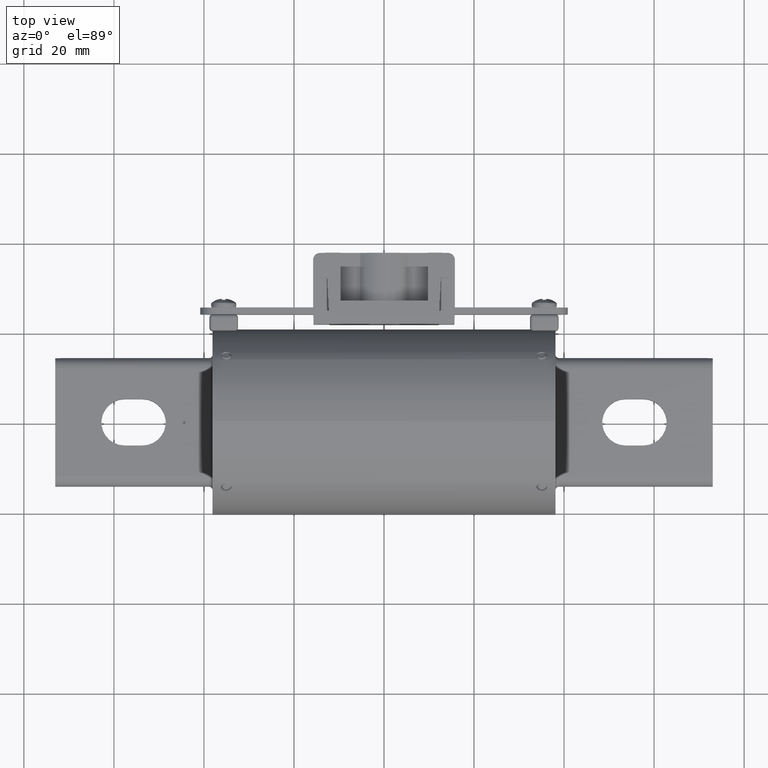
[diagram: clean part render]
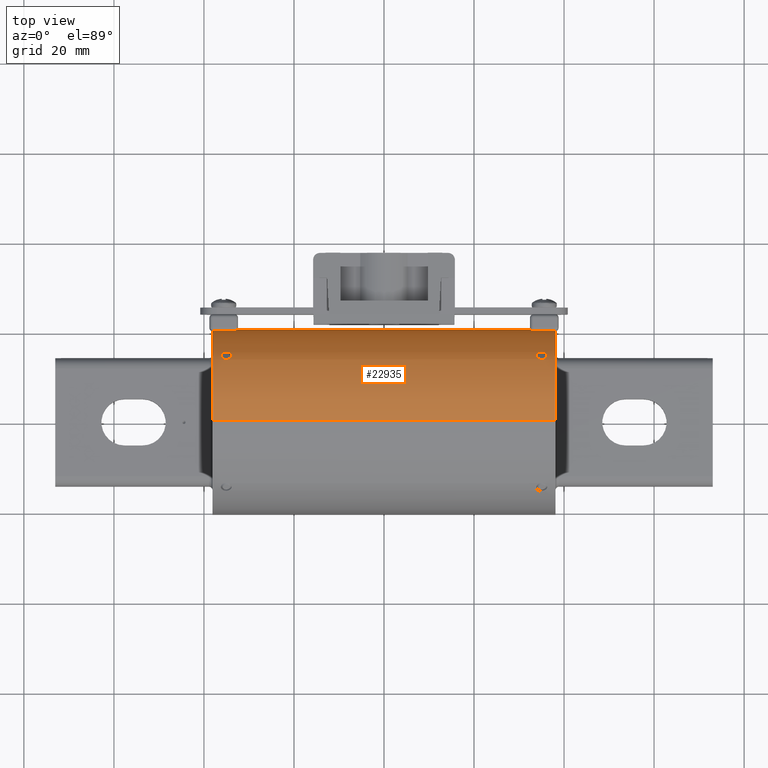
[diagram: same view with one face highlighted and labeled with its STEP entity id]
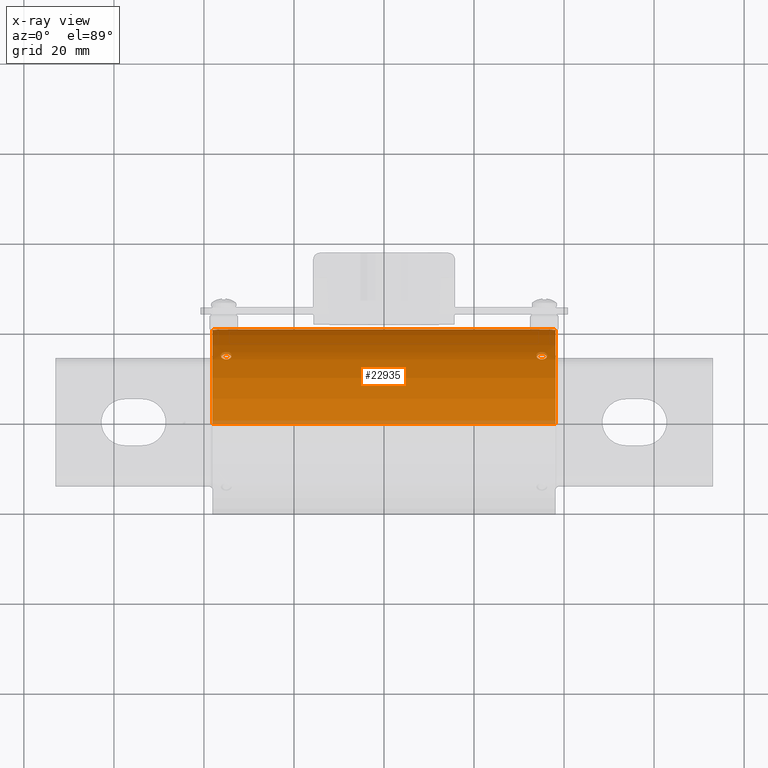
[diagram: x-ray of the same camera — body ghosted, the highlighted face saturated]
A machine part, top view. The second image highlights one B-rep face of the part: STEP entity #22935.
The next image is the same camera in x-ray: the body ghosted, the highlighted face saturated — about 4% of this face is hidden behind the body in this view.
In plain terms, the highlighted cylindrical surface (partial cylindrical patch) has radius 20.6375 mm, axis along (-1, -0, -0).
Its self-contained STEP definition (entity closure, byte-faithful):
#1241 = DIRECTION ( 'NONE',  ( 0.0000000000000000000, 0.0000000000000000000, -1.000000000000000000 ) ) ;
#1450 = CARTESIAN_POINT ( 'NONE',  ( -1.356433065960337900, 0.5448201763631578300, -0.6027708453971180000 ) ) ;
#1861 = CARTESIAN_POINT ( 'NONE',  ( -1.373805751890551500, 0.6067129692111661300, -0.5404217084749377600 ) ) ;
#1900 = CARTESIAN_POINT ( 'NONE',  ( 1.351252371457680700, 0.8124998518751140900, 0.006640135191324507600 ) ) ;
#1938 = CARTESIAN_POINT ( 'NONE',  ( 1.342471897315889800, 0.5945098391806436000, 0.5538352580951657600 ) ) ;
#2285 = CARTESIAN_POINT ( 'NONE',  ( 1.401999999999977500, 0.8109134895289188400, -0.05075000000031478600 ) ) ;
#3332 = VERTEX_POINT ( 'NONE', #50937 ) ;
#3463 = ORIENTED_EDGE ( 'NONE', *, *, #9283, .T. ) ;
#3805 = CARTESIAN_POINT ( 'NONE',  ( 1.356371092076802600, 0.6027509385800075000, -0.5448422808527991800 ) ) ;
#4214 = CARTESIAN_POINT ( 'NONE',  ( 1.373880746103290900, 0.5404217084749315400, -0.6067129692111719000 ) ) ;
#4459 = CARTESIAN_POINT ( 'NONE',  ( -1.446353362245362200, 0.8121216194828972900, 0.02553519323606174800 ) ) ;
#4610 = B_SPLINE_CURVE_WITH_KNOTS ( 'NONE', 3,
 ( #87885, #79269, #43364, #106377, #52509, #115495, #61547, #7448, #70615, #16521, #79648, #25628, #88654, #34662, #97642, #43738, #106751, #52882 ),
 .UNSPECIFIED., .F., .F.,
 ( 4, 2, 2, 2, 2, 2, 2, 2, 4 ),
 ( 0.003723209615394669600, 0.004188504411276416600, 0.004653799207158164000, 0.005119094003039911500, 0.005584388798921658900, 0.006049683594803406300, 0.006514978390685153800, 0.006980273186566901200, 0.007445567982448648600 ),
 .UNSPECIFIED. ) ;
#4864 = CARTESIAN_POINT ( 'NONE',  ( -1.408677070093758100, 0.8109344578742244700, -0.05041802886955608400 ) ) ;
#5236 = ORIENTED_EDGE ( 'NONE', *, *, #19069, .T. ) ;
#5490 = CARTESIAN_POINT ( 'NONE',  ( -1.408828462405568700, 0.5474300208841358400, 0.6004126559828045800 ) ) ;
#5893 = CARTESIAN_POINT ( 'NONE',  ( -1.380000000000021400, 0.6067129692113614200, 0.5404217084747184900 ) ) ;
#6035 = CYLINDRICAL_SURFACE ( 'NONE', #36619, 0.8125000000000000000 ) ;
#6043 = VERTEX_POINT ( 'NONE', #44352 ) ;
#6720 = CARTESIAN_POINT ( 'NONE',  ( 1.426869921360651500, 0.5789246539675793100, 0.5701234510983535000 ) ) ;
#7429 = CARTESIAN_POINT ( 'NONE',  ( 1.403566934039661700, 0.5448201763631578300, -0.6027708453971181200 ) ) ;
#7448 = CARTESIAN_POINT ( 'NONE',  ( -1.334356066917588700, 0.5831778910608151900, 0.5657666899052981000 ) ) ;
#7615 = CARTESIAN_POINT ( 'NONE',  ( -1.351244563332537800, 0.8125003395825016700, 0.006655732161381064900 ) ) ;
#7663 = CARTESIAN_POINT ( 'NONE',  ( -1.379999999999999400, 0.6067129692111661300, -0.5404217084749376500 ) ) ;
#7820 = CARTESIAN_POINT ( 'NONE',  ( 1.386194248109448700, 0.6067129692111661300, -0.5404217084749376500 ) ) ;
#8036 = CARTESIAN_POINT ( 'NONE',  ( -1.417528102684109800, 0.5538352580951637600, -0.5945098391806454800 ) ) ;
#8514 = CARTESIAN_POINT ( 'NONE',  ( 1.440201450492849300, 0.8118094414838551400, -0.03357314165539757000 ) ) ;
#8889 = CARTESIAN_POINT ( 'NONE',  ( 1.427576788767666000, 0.8112937967791203900, 0.04432921167862374100 ) ) ;
#9283 = EDGE_CURVE ( 'NONE', #70844, #6043, #103886, .T. ) ;
#9526 = EDGE_LOOP ( 'NONE', ( #84906, #115695 ) ) ;
#9834 = B_SPLINE_CURVE_WITH_KNOTS ( 'NONE', 3,
 ( #109114, #82287, #55662, #1450, #64678, #10574, #73721, #19704, #82695, #28751, #91777, #37779, #100832, #46894, #109904, #56052, #1861, #65080 ),
 .UNSPECIFIED., .F., .F.,
 ( 4, 2, 2, 2, 2, 2, 2, 2, 4 ),
 ( 0.003723209615394672600, 0.004188504411276420900, 0.004653799207158168400, 0.005119094003039916700, 0.005584388798921664100, 0.006049683594803412400, 0.006514978390685160700, 0.006980273186566908100, 0.007445567982448656400 ),
 .UNSPECIFIED. ) ;
#10227 = CARTESIAN_POINT ( 'NONE',  ( 1.395291901967699700, 0.8109134895289387100, 0.05074999999999971900 ) ) ;
#10574 = CARTESIAN_POINT ( 'NONE',  ( -1.342553252778834600, 0.5537696667613456500, -0.5945705045400580000 ) ) ;
#11023 = CARTESIAN_POINT ( 'NONE',  ( 1.351579019172414000, 0.8124792577796213800, -0.006655949083109247300 ) ) ;
#11068 = CARTESIAN_POINT ( 'NONE',  ( 1.356382330891135400, 0.6027555794617923700, 0.5448371430937500900 ) ) ;
#12911 = CARTESIAN_POINT ( 'NONE',  ( 1.342525065733104300, 0.5945461087900731900, -0.5537959098369302800 ) ) ;
#13165 = CARTESIAN_POINT ( 'NONE',  ( -1.408708098032301200, 0.8109134895289382700, 0.05074999999999969100 ) ) ;
#13556 = CARTESIAN_POINT ( 'NONE',  ( -1.452747628542320000, 0.8124998518751143100, 0.006640135191324511900 ) ) ;
#13947 = CARTESIAN_POINT ( 'NONE',  ( -1.402000000000023000, 0.8109134895289188400, -0.05075000000031478600 ) ) ;
#14585 = CARTESIAN_POINT ( 'NONE',  ( -1.420966965110058000, 0.5576188028817840000, 0.5909732293696192700 ) ) ;
#14662 = CARTESIAN_POINT ( 'NONE',  ( 1.386117854833654400, 0.6067129692111770100, 0.5404217084749255400 ) ) ;
#15799 = CARTESIAN_POINT ( 'NONE',  ( 1.425666982282245600, 0.5658239336664527800, 0.5831224947826034700 ) ) ;
#16499 = CARTESIAN_POINT ( 'NONE',  ( 1.417446747221165100, 0.5537696667613456500, -0.5945705045400580000 ) ) ;
#16521 = CARTESIAN_POINT ( 'NONE',  ( -1.333119952770335500, 0.5701781288763717600, 0.5788708023512828500 ) ) ;
#16680 = CARTESIAN_POINT ( 'NONE',  ( -1.356375541747683000, 0.8121949673349598800, 0.02247342857082229600 ) ) ;
#16719 = CARTESIAN_POINT ( 'NONE',  ( -1.386195664642437400, 0.6067129692111661300, -0.5404217084749376500 ) ) ;
#17049 = ORIENTED_EDGE ( 'NONE', *, *, #38247, .T. ) ;
#17122 = CARTESIAN_POINT ( 'NONE',  ( -1.403617669108864700, 0.5448371430937479800, -0.6027555794617942600 ) ) ;
#17631 = CARTESIAN_POINT ( 'NONE',  ( 1.446033250219799900, 0.8121060418378526200, -0.02544884172758505100 ) ) ;
#18020 = CARTESIAN_POINT ( 'NONE',  ( 1.408706560904659600, 0.8109134895289382700, 0.05074999999999968400 ) ) ;
#19069 = EDGE_CURVE ( 'NONE', #111819, #70844, #86147, .T. ) ;
#19704 = CARTESIAN_POINT ( 'NONE',  ( -1.334356066917588700, 0.5657666899052959900, -0.5831778910608170800 ) ) ;
#19788 = CARTESIAN_POINT ( 'NONE',  ( 1.356371092076802600, 0.5448422808527970700, 0.6027509385800092800 ) ) ;
#20152 = CARTESIAN_POINT ( 'NONE',  ( 1.353834067855294300, 0.8123416975327501000, -0.01632984338062948300 ) ) ;
#20192 = CARTESIAN_POINT ( 'NONE',  ( 1.373880746103290900, 0.6067129692111701300, 0.5404217084749335400 ) ) ;
#20851 = B_SPLINE_CURVE_WITH_KNOTS ( 'NONE', 3,
 ( #64723, #10227, #82733, #28792, #91814, #37827, #100874, #46929, #109948, #56098, #1900, #65119, #11023, #74141, #20152, #83140, #29191, #92216, #38242, #101277, #47312, #110372, #56498, #2285 ),
 .UNSPECIFIED., .F., .F.,
 ( 4, 2, 2, 2, 2, 2, 2, 2, 2, 2, 2, 4 ),
 ( 0.0000000000000000000, 0.0005038923699476577200, 0.0007558385549214864700, 0.001007784739895315400, 0.001511677109842973600, 0.002015569479790632200, 0.002267515664764461300, 0.002519461849738290800, 0.003023354219685948900, 0.003527246589633607500, 0.003779192774607427500, 0.004031138959581247000 ),
 .UNSPECIFIED. ) ;
#20966 = EDGE_CURVE ( 'NONE', #74312, #44959, #49442, .T. ) ;
#21758 = B_SPLINE_CURVE_WITH_KNOTS ( 'NONE', 3,
 ( #85260, #13165, #94279, #40389, #103421, #49460, #112475, #58622, #4459, #67618, #13556, #76683, #22681, #85650, #31728, #94693, #40768, #103806, #49854, #112898, #59003, #4864, #68002, #13947 ),
 .UNSPECIFIED., .F., .F.,
 ( 4, 2, 2, 2, 2, 2, 2, 2, 2, 2, 2, 4 ),
 ( 0.0000000000000000000, 0.0005038923699476580400, 0.0007558385549214870100, 0.001007784739895316100, 0.001511677109842974700, 0.002015569479790633500, 0.002267515664764462600, 0.002519461849738292100, 0.003023354219685950700, 0.003527246589633609200, 0.003779192774607428800, 0.004031138959581247900 ),
 .UNSPECIFIED. ) ;
#22044 = CARTESIAN_POINT ( 'NONE',  ( 1.334358055475223500, 0.5831717867346273300, -0.5657727055237048400 ) ) ;
#22681 = CARTESIAN_POINT ( 'NONE',  ( -1.452420980827587000, 0.8124792577796210400, -0.006655949083109241300 ) ) ;
#22935 = ADVANCED_FACE ( 'NONE', ( #92044, #113285, #68191, #116076, #44135, #89235, #65340 ), #6035, .T. ) ;
#23692 = CARTESIAN_POINT ( 'NONE',  ( -1.426872812650181300, 0.5701875805887833800, 0.5788607603751496600 ) ) ;
#24024 = CARTESIAN_POINT ( 'NONE',  ( 1.500000000000000200, 9.950255243072241900E-017, -0.8125000000000000000 ) ) ;
#24390 = VERTEX_POINT ( 'NONE', #71391 ) ;
#24670 = EDGE_LOOP ( 'NONE', ( #26499, #54518 ) ) ;
#24910 = CARTESIAN_POINT ( 'NONE',  ( 1.417491320038341700, 0.5538112410108802000, 0.5945318542556512500 ) ) ;
#25417 = CARTESIAN_POINT ( 'NONE',  ( -1.402000000000023000, 0.8109134895289188400, -0.05075000000031478600 ) ) ;
#25613 = CARTESIAN_POINT ( 'NONE',  ( 1.425643933082411800, 0.5657666899052959900, -0.5831778910608171900 ) ) ;
#25628 = CARTESIAN_POINT ( 'NONE',  ( -1.339034351786143200, 0.5576089856783125200, 0.5909828990098354700 ) ) ;
#25801 = CARTESIAN_POINT ( 'NONE',  ( -1.361608305842587000, 0.8119167493929856400, 0.03090395417209128000 ) ) ;
#25849 = CARTESIAN_POINT ( 'NONE',  ( -1.403628907923196100, 0.6027509385800073900, -0.5448422808527991800 ) ) ;
#26213 = CARTESIAN_POINT ( 'NONE',  ( -1.386119253896709100, 0.5404217084749314300, -0.6067129692111717900 ) ) ;
#26499 = ORIENTED_EDGE ( 'NONE', *, *, #31275, .T. ) ;
#26684 = CARTESIAN_POINT ( 'NONE',  ( 1.451417189308549700, 0.8124138531651009500, -0.01332939482628146500 ) ) ;
#27287 = B_SPLINE_CURVE_WITH_KNOTS ( 'NONE', 3,
 ( #88242, #97240, #61529, #7429, #70598, #16499, #79627, #25613, #88634, #34637, #97618, #43721, #106740, #52865, #115849, #61913, #7820, #70961 ),
 .UNSPECIFIED., .F., .F.,
 ( 4, 2, 2, 2, 2, 2, 2, 2, 4 ),
 ( 0.003723209615394672200, 0.004188504411276420100, 0.004653799207158168400, 0.005119094003039915800, 0.005584388798921664100, 0.006049683594803411500, 0.006514978390685159800, 0.006980273186566908100, 0.007445567982448655600 ),
 .UNSPECIFIED. ) ;
#28751 = CARTESIAN_POINT ( 'NONE',  ( -1.333119952770335500, 0.5788708023512808600, -0.5701781288763738700 ) ) ;
#28792 = CARTESIAN_POINT ( 'NONE',  ( 1.379490439925653800, 0.8112200253980871300, 0.04560645876910185400 ) ) ;
#28830 = CARTESIAN_POINT ( 'NONE',  ( 1.342525065733104300, 0.5537959098369283900, 0.5945461087900750800 ) ) ;
#29191 = CARTESIAN_POINT ( 'NONE',  ( 1.361369663056379600, 0.8119169386472006000, -0.03113900895797574300 ) ) ;
#31092 = CARTESIAN_POINT ( 'NONE',  ( 1.333122818629303800, 0.5702114345898871000, -0.5788372628146273300 ) ) ;
#31275 = EDGE_CURVE ( 'NONE', #91767, #71437, #93802, .T. ) ;
#31421 = AXIS2_PLACEMENT_3D ( 'NONE', #109290, #55445, #1241 ) ;
#31728 = CARTESIAN_POINT ( 'NONE',  ( -1.450165932144706200, 0.8123416975327499800, -0.01632984338062946200 ) ) ;
#31891 = EDGE_CURVE ( 'NONE', #3332, #58335, #59307, .T. ) ;
#32685 = CARTESIAN_POINT ( 'NONE',  ( -1.425662583090612400, 0.5831312273501619800, 0.5658148604589055000 ) ) ;
#33308 = CARTESIAN_POINT ( 'NONE',  ( -1.388699649378440300, 0.8109995718348915700, -0.04942019571459282300 ) ) ;
#33424 = CARTESIAN_POINT ( 'NONE',  ( 1.380000000000000100, 0.5404217084749356500, 0.6067129692111680200 ) ) ;
#33960 = CARTESIAN_POINT ( 'NONE',  ( 1.403623548920351500, 0.5448444363278255300, 0.6027489470484238600 ) ) ;
#34072 = EDGE_LOOP ( 'NONE', ( #34447, #111170 ) ) ;
#34445 = CARTESIAN_POINT ( 'NONE',  ( -1.370821198243094200, 0.8114991860928023600, -0.04058597618004727800 ) ) ;
#34447 = ORIENTED_EDGE ( 'NONE', *, *, #20966, .T. ) ;
#34637 = CARTESIAN_POINT ( 'NONE',  ( 1.426880047229664100, 0.5788708023512808600, -0.5701781288763735400 ) ) ;
#34662 = CARTESIAN_POINT ( 'NONE',  ( -1.351153312296810200, 0.5474401848577422600, 0.6004034147118044700 ) ) ;
#34822 = CARTESIAN_POINT ( 'NONE',  ( -1.370768331876146800, 0.8115012334176090500, 0.04054625038881767800 ) ) ;
#34854 = CARTESIAN_POINT ( 'NONE',  ( -1.417474934266894900, 0.5945461087900731900, -0.5537959098369302800 ) ) ;
#35697 = CARTESIAN_POINT ( 'NONE',  ( 1.452755436667462200, 0.8125003395825014500, 0.006655732161381074400 ) ) ;
#35759 = VERTEX_POINT ( 'NONE', #85694 ) ;
#36619 = AXIS2_PLACEMENT_3D ( 'NONE', #87578, #96573, #78963 ) ;
#37779 = CARTESIAN_POINT ( 'NONE',  ( -1.339034351786143200, 0.5909828990098334700, -0.5576089856783147400 ) ) ;
#37827 = CARTESIAN_POINT ( 'NONE',  ( 1.371059118246882100, 0.8114988767819360000, 0.04036365200181045400 ) ) ;
#37865 = CARTESIAN_POINT ( 'NONE',  ( 1.334358055475223500, 0.5657727055237026200, 0.5831717867346293300 ) ) ;
#38242 = CARTESIAN_POINT ( 'NONE',  ( 1.376429886200702300, 0.8112932403160738600, -0.04434002592996495000 ) ) ;
#38247 = EDGE_CURVE ( 'NONE', #58335, #3332, #9834, .T. ) ;
#40143 = CARTESIAN_POINT ( 'NONE',  ( 1.339034311650661300, 0.5576104433097035500, -0.5909814532952727400 ) ) ;
#40389 = CARTESIAN_POINT ( 'NONE',  ( -1.424509560074346500, 0.8112200253980874600, 0.04560645876910186800 ) ) ;
#40448 = ORIENTED_EDGE ( 'NONE', *, *, #87365, .T. ) ;
#40601 = CARTESIAN_POINT ( 'NONE',  ( -1.500000000000000200, 0.0000000000000000000, 0.0000000000000000000 ) ) ;
#40768 = CARTESIAN_POINT ( 'NONE',  ( -1.442630336943621700, 0.8119169386472006000, -0.03113900895797573300 ) ) ;
#41814 = CARTESIAN_POINT ( 'NONE',  ( -1.417528102684109800, 0.5945098391806436000, 0.5538352580951657600 ) ) ;
#41876 = CARTESIAN_POINT ( 'NONE',  ( 1.500000000000000200, 0.0000000000000000000, 0.8125000000000000000 ) ) ;
#42652 = CARTESIAN_POINT ( 'NONE',  ( 1.403566934039661700, 0.6027708453971161200, 0.5448201763631599400 ) ) ;
#42866 = CARTESIAN_POINT ( 'NONE',  ( 1.408623706863858100, 0.8109134895289383800, -0.05075000000000556100 ) ) ;
#43030 = EDGE_CURVE ( 'NONE', #65924, #6043, #77250, .T. ) ;
#43034 = CARTESIAN_POINT ( 'NONE',  ( 1.386194248109448700, 0.5404217084749358700, 0.6067129692111682400 ) ) ;
#43364 = CARTESIAN_POINT ( 'NONE',  ( -1.367715561590287800, 0.6058964302733759200, 0.5413420659944310200 ) ) ;
#43527 = CARTESIAN_POINT ( 'NONE',  ( -1.361654901211740700, 0.8119144185570667000, -0.03096520101599167800 ) ) ;
#43721 = CARTESIAN_POINT ( 'NONE',  ( 1.420965648213856800, 0.5909828990098334700, -0.5576089856783145200 ) ) ;
#43738 = CARTESIAN_POINT ( 'NONE',  ( -1.367652137076275500, 0.5413548832270064200, 0.6058850083734070900 ) ) ;
#43893 = CARTESIAN_POINT ( 'NONE',  ( -1.388630815926905200, 0.8110007322138467200, 0.04940157941740060800 ) ) ;
#43934 = CARTESIAN_POINT ( 'NONE',  ( -1.425641944524776500, 0.5831717867346273300, -0.5657727055237048400 ) ) ;
#44135 = FACE_BOUND ( 'NONE', #53576, .T. ) ;
#44352 = CARTESIAN_POINT ( 'NONE',  ( -1.500000000000000200, 0.0000000000000000000, 0.8125000000000000000 ) ) ;
#44792 = CARTESIAN_POINT ( 'NONE',  ( 1.447624458252318100, 0.8121949673349598800, 0.02247342857082230600 ) ) ;
#44959 = VERTEX_POINT ( 'NONE', #46879 ) ;
#45829 = CARTESIAN_POINT ( 'NONE',  ( -1.380000000000021400, 0.5404217084747163800, -0.6067129692113633100 ) ) ;
#46879 = CARTESIAN_POINT ( 'NONE',  ( 1.379999999999978100, 0.6067129692113614200, 0.5404217084747184900 ) ) ;
#46894 = CARTESIAN_POINT ( 'NONE',  ( -1.351153312296810900, 0.6004034147118025900, -0.5474401848577444800 ) ) ;
#46929 = CARTESIAN_POINT ( 'NONE',  ( 1.361427308519797700, 0.8119143841985552200, 0.03119692362816008400 ) ) ;
#46966 = CARTESIAN_POINT ( 'NONE',  ( 1.333122818629303800, 0.5788372628146253300, 0.5702114345898892100 ) ) ;
#47312 = CARTESIAN_POINT ( 'NONE',  ( 1.388818352157769700, 0.8110140982390887700, -0.04912031209481242100 ) ) ;
#48131 = CARTESIAN_POINT ( 'NONE',  ( -1.402000000000023000, 0.8109134895289188400, -0.05075000000031478600 ) ) ;
#48822 = CARTESIAN_POINT ( 'NONE',  ( 1.373804335357562000, 0.6067129692111660200, -0.5404217084749375300 ) ) ;
#49221 = CARTESIAN_POINT ( 'NONE',  ( 1.351222571108863500, 0.5473922444789398600, -0.6004474770337884200 ) ) ;
#49442 = B_SPLINE_CURVE_WITH_KNOTS ( 'NONE', 3,
 ( #73804, #109577, #64756, #19788, #82772, #28830, #91851, #37865, #100921, #46966, #109988, #56140, #1938, #65152, #11068, #74182, #20192, #83179 ),
 .UNSPECIFIED., .F., .F.,
 ( 4, 2, 2, 2, 2, 2, 2, 2, 4 ),
 ( 0.0000000000000000000, 0.0004654012019243337000, 0.0009308024038486673900, 0.001396203605773001100, 0.001861604807697334800, 0.002327006009621668400, 0.002792407211546002300, 0.003257808413470335700, 0.003723209615394669600 ),
 .UNSPECIFIED. ) ;
#49460 = CARTESIAN_POINT ( 'NONE',  ( -1.432940881753118000, 0.8114988767819357700, 0.04036365200181044700 ) ) ;
#49683 = DIRECTION ( 'NONE',  ( 0.0000000000000000000, 0.0000000000000000000, -1.000000000000000000 ) ) ;
#49854 = CARTESIAN_POINT ( 'NONE',  ( -1.427570113799298200, 0.8112932403160739700, -0.04434002592996497100 ) ) ;
#50486 = CARTESIAN_POINT ( 'NONE',  ( -1.392275177629934000, 0.5413362255244647000, 0.6059017213202867500 ) ) ;
#50889 = CARTESIAN_POINT ( 'NONE',  ( -1.403617669108864700, 0.6027555794617923700, 0.5448371430937500900 ) ) ;
#50937 = CARTESIAN_POINT ( 'NONE',  ( -1.379999999999999400, 0.6067129692111661300, -0.5404217084749376500 ) ) ;
#51758 = CARTESIAN_POINT ( 'NONE',  ( 1.417446747221165100, 0.5945705045400560000, 0.5537696667613475300 ) ) ;
#51981 = CARTESIAN_POINT ( 'NONE',  ( 1.415300350621560200, 0.8109995718348915700, -0.04942019571459282300 ) ) ;
#52509 = CARTESIAN_POINT ( 'NONE',  ( -1.351201921766639100, 0.6004279644004822900, 0.5474131787415096300 ) ) ;
#52660 = CARTESIAN_POINT ( 'NONE',  ( -1.356406758039788100, 0.8121932109364710100, -0.02253577165209887100 ) ) ;
#52741 = ORIENTED_EDGE ( 'NONE', *, *, #43030, .F. ) ;
#52865 = CARTESIAN_POINT ( 'NONE',  ( 1.408846687703189300, 0.6004034147118025900, -0.5474401848577444800 ) ) ;
#52882 = CARTESIAN_POINT ( 'NONE',  ( -1.379999999999999400, 0.5404217084749356500, 0.6067129692111680200 ) ) ;
#53044 = CARTESIAN_POINT ( 'NONE',  ( -1.402000000000000100, 0.8109134895289387100, 0.05074999999999969800 ) ) ;
#53086 = CARTESIAN_POINT ( 'NONE',  ( -1.426877181370695500, 0.5702114345898869900, -0.5788372628146273300 ) ) ;
#53110 = ORIENTED_EDGE ( 'NONE', *, *, #97996, .T. ) ;
#53290 = VECTOR ( 'NONE', #101015, 39.37007874015748100 ) ;
#53576 = EDGE_LOOP ( 'NONE', ( #53110, #40448 ) ) ;
#53974 = CARTESIAN_POINT ( 'NONE',  ( 1.442391694157413300, 0.8119167493929857500, 0.03090395417209127300 ) ) ;
#54518 = ORIENTED_EDGE ( 'NONE', *, *, #88665, .T. ) ;
#55445 = DIRECTION ( 'NONE',  ( 1.000000000000000000, 0.0000000000000000000, 0.0000000000000000000 ) ) ;
#55662 = CARTESIAN_POINT ( 'NONE',  ( -1.367715561590287800, 0.5413420659944289100, -0.6058964302733780300 ) ) ;
#56052 = CARTESIAN_POINT ( 'NONE',  ( -1.367652137076275500, 0.6058850083734052000, -0.5413548832270084200 ) ) ;
#56098 = CARTESIAN_POINT ( 'NONE',  ( 1.352585116629576400, 0.8124137706781980900, 0.01332051566414508400 ) ) ;
#56140 = CARTESIAN_POINT ( 'NONE',  ( 1.339034311650661300, 0.5909814532952706300, 0.5576104433097057700 ) ) ;
#56498 = CARTESIAN_POINT ( 'NONE',  ( 1.398687387499160800, 0.8109134895289388200, -0.05074999999999727000 ) ) ;
#57989 = CARTESIAN_POINT ( 'NONE',  ( 1.367724822370066000, 0.6059017213202848600, -0.5413362255244669200 ) ) ;
#58335 = VERTEX_POINT ( 'NONE', #45829 ) ;
#58373 = CARTESIAN_POINT ( 'NONE',  ( 1.367742966191358900, 0.5413322941828426800, -0.6059052304953480600 ) ) ;
#58622 = CARTESIAN_POINT ( 'NONE',  ( -1.442572691480202600, 0.8119143841985555500, 0.03119692362816010200 ) ) ;
#59003 = CARTESIAN_POINT ( 'NONE',  ( -1.415181647842230300, 0.8110140982390886500, -0.04912031209481242100 ) ) ;
#59078 = EDGE_CURVE ( 'NONE', #24390, #79872, #20851, .T. ) ;
#59307 = B_SPLINE_CURVE_WITH_KNOTS ( 'NONE', 3,
 ( #7663, #16719, #79830, #25849, #88853, #34854, #97841, #43934, #106948, #53086, #116065, #62123, #8036, #71171, #17122, #80214, #26213, #89224 ),
 .UNSPECIFIED., .F., .F.,
 ( 4, 2, 2, 2, 2, 2, 2, 2, 4 ),
 ( 0.0000000000000000000, 0.0004654012019243340800, 0.0009308024038486681500, 0.001396203605773002200, 0.001861604807697336300, 0.002327006009621670200, 0.002792407211546004500, 0.003257808413470338800, 0.003723209615394672600 ),
 .UNSPECIFIED. ) ;
#59630 = CARTESIAN_POINT ( 'NONE',  ( -1.403628907923196100, 0.5448422808527970700, 0.6027509385800092800 ) ) ;
#59990 = CARTESIAN_POINT ( 'NONE',  ( -1.386119253896709100, 0.6067129692111701300, 0.5404217084749335400 ) ) ;
#60836 = CARTESIAN_POINT ( 'NONE',  ( 1.425643933082411800, 0.5831778910608150800, 0.5657666899052981000 ) ) ;
#60868 = CARTESIAN_POINT ( 'NONE',  ( -1.379999999999999400, 0.5404217084749356500, 0.6067129692111680200 ) ) ;
#61323 = CARTESIAN_POINT ( 'NONE',  ( -1.395376293136143100, 0.8109134895289383800, -0.05075000000000556100 ) ) ;
#61529 = CARTESIAN_POINT ( 'NONE',  ( 1.392284438409711900, 0.5413420659944289100, -0.6058964302733778100 ) ) ;
#61547 = CARTESIAN_POINT ( 'NONE',  ( -1.339065071483521100, 0.5910172077780382300, 0.5575724707504747800 ) ) ;
#61713 = CARTESIAN_POINT ( 'NONE',  ( -1.351255470319958900, 0.8124996583155123000, -0.006738384781255305300 ) ) ;
#61913 = CARTESIAN_POINT ( 'NONE',  ( 1.392347862923724300, 0.6058850083734052000, -0.5413548832270084200 ) ) ;
#62123 = CARTESIAN_POINT ( 'NONE',  ( -1.420965688349338200, 0.5576104433097035500, -0.5909814532952725200 ) ) ;
#62609 = CARTESIAN_POINT ( 'NONE',  ( 1.433178801756906700, 0.8114991860928023600, -0.04058597618004727800 ) ) ;
#62991 = CARTESIAN_POINT ( 'NONE',  ( 1.433231668123852800, 0.8115012334176090500, 0.04054625038881769200 ) ) ;
#64363 = B_SPLINE_CURVE_WITH_KNOTS ( 'NONE', 3,
 ( #78765, #42866, #51981, #114983, #62609, #8514, #71646, #17631, #80661, #26684, #89716, #35697, #98701, #44792, #107808, #53974, #116947, #62991, #8889, #72034, #18020, #81047 ),
 .UNSPECIFIED., .F., .F.,
 ( 4, 2, 2, 2, 2, 2, 2, 2, 2, 2, 4 ),
 ( 0.004031138959581247000, 0.004534915865072900100, 0.005038692770564553100, 0.005290581223310386600, 0.005542469676056220900, 0.006046246581547896600, 0.006550023487039572200, 0.006801911939785410000, 0.007053800392531247800, 0.007557577298022937300, 0.008061354203514628500 ),
 .UNSPECIFIED. ) ;
#64678 = CARTESIAN_POINT ( 'NONE',  ( -1.351201921766639100, 0.5474131787415076300, -0.6004279644004841800 ) ) ;
#64723 = CARTESIAN_POINT ( 'NONE',  ( 1.402000000000000100, 0.8109134895289387100, 0.05074999999999969800 ) ) ;
#64756 = CARTESIAN_POINT ( 'NONE',  ( 1.367724822370066000, 0.5413362255244647000, 0.6059017213202867500 ) ) ;
#65080 = CARTESIAN_POINT ( 'NONE',  ( -1.379999999999999400, 0.6067129692111661300, -0.5404217084749376500 ) ) ;
#65119 = CARTESIAN_POINT ( 'NONE',  ( 1.351248819139288800, 0.8125000737583723000, -0.003292843110509935600 ) ) ;
#65152 = CARTESIAN_POINT ( 'NONE',  ( 1.351222571108863500, 0.6004474770337866500, 0.5473922444789419700 ) ) ;
#65340 = FACE_OUTER_BOUND ( 'NONE', #113031, .T. ) ;
#65924 = VERTEX_POINT ( 'NONE', #41876 ) ;
#66985 = CARTESIAN_POINT ( 'NONE',  ( 1.351171537594431100, 0.6004126559828025800, -0.5474300208841380600 ) ) ;
#67374 = CARTESIAN_POINT ( 'NONE',  ( 1.379999999999978100, 0.5404217084747163800, -0.6067129692113634200 ) ) ;
#67618 = CARTESIAN_POINT ( 'NONE',  ( -1.451414883370424100, 0.8124137706781980900, 0.01332051566414507000 ) ) ;
#67820 = EDGE_CURVE ( 'NONE', #70816, #35759, #114932, .T. ) ;
#67929 = EDGE_CURVE ( 'NONE', #79872, #24390, #64363, .T. ) ;
#68002 = CARTESIAN_POINT ( 'NONE',  ( -1.405312612500839900, 0.8109134895289389400, -0.05074999999999725600 ) ) ;
#68191 = FACE_BOUND ( 'NONE', #85362, .T. ) ;
#68645 = CARTESIAN_POINT ( 'NONE',  ( -1.417474934266894900, 0.5537959098369283900, 0.5945461087900750800 ) ) ;
#69875 = CARTESIAN_POINT ( 'NONE',  ( 1.426880047229664100, 0.5701781288763717600, 0.5788708023512828500 ) ) ;
#70598 = CARTESIAN_POINT ( 'NONE',  ( 1.408798078233360700, 0.5474131787415076300, -0.6004279644004841800 ) ) ;
#70615 = CARTESIAN_POINT ( 'NONE',  ( -1.333130078639348100, 0.5789246539675794200, 0.5701234510983535000 ) ) ;
#70771 = CARTESIAN_POINT ( 'NONE',  ( -1.352558197891236700, 0.8124153644469290800, 0.01324407167071979500 ) ) ;
#70816 = VERTEX_POINT ( 'NONE', #71914 ) ;
#70844 = VERTEX_POINT ( 'NONE', #99361 ) ;
#70961 = CARTESIAN_POINT ( 'NONE',  ( 1.380000000000000100, 0.6067129692111661300, -0.5404217084749376500 ) ) ;
#71171 = CARTESIAN_POINT ( 'NONE',  ( -1.408777428891136100, 0.5473922444789399700, -0.6004474770337885300 ) ) ;
#71391 = CARTESIAN_POINT ( 'NONE',  ( 1.402000000000000100, 0.8109134895289387100, 0.05074999999999969800 ) ) ;
#71437 = VERTEX_POINT ( 'NONE', #93881 ) ;
#71646 = CARTESIAN_POINT ( 'NONE',  ( 1.442345098788259800, 0.8119144185570667000, -0.03096520101599169500 ) ) ;
#71914 = CARTESIAN_POINT ( 'NONE',  ( 1.380000000000000100, 0.6067129692111661300, -0.5404217084749376500 ) ) ;
#72034 = CARTESIAN_POINT ( 'NONE',  ( 1.415369184073095100, 0.8110007322138468300, 0.04940157941740060100 ) ) ;
#73721 = CARTESIAN_POINT ( 'NONE',  ( -1.339065071483521100, 0.5575724707504726700, -0.5910172077780401200 ) ) ;
#73804 = CARTESIAN_POINT ( 'NONE',  ( 1.380000000000000100, 0.5404217084749356500, 0.6067129692111680200 ) ) ;
#74141 = CARTESIAN_POINT ( 'NONE',  ( 1.352875263090849600, 0.8123998453907418400, -0.01316575821666182700 ) ) ;
#74182 = CARTESIAN_POINT ( 'NONE',  ( 1.367742966191358900, 0.6059052304953462800, 0.5413322941828449000 ) ) ;
#74312 = VERTEX_POINT ( 'NONE', #33424 ) ;
#75952 = ORIENTED_EDGE ( 'NONE', *, *, #31891, .T. ) ;
#76035 = CARTESIAN_POINT ( 'NONE',  ( 1.339033034889941500, 0.5909732293696172700, -0.5576188028817861100 ) ) ;
#76683 = CARTESIAN_POINT ( 'NONE',  ( -1.452751180860711900, 0.8125000737583718500, -0.003292843110509916500 ) ) ;
#77250 = LINE ( 'NONE', #91944, #53290 ) ;
#77678 = ORIENTED_EDGE ( 'NONE', *, *, #94638, .F. ) ;
#77696 = CARTESIAN_POINT ( 'NONE',  ( -1.425641944524776500, 0.5657727055237026200, 0.5831717867346293300 ) ) ;
#78555 = CARTESIAN_POINT ( 'NONE',  ( 1.379999999999978100, 0.6067129692113614200, 0.5404217084747184900 ) ) ;
#78765 = CARTESIAN_POINT ( 'NONE',  ( 1.401999999999977500, 0.8109134895289188400, -0.05075000000031478600 ) ) ;
#78926 = CARTESIAN_POINT ( 'NONE',  ( 1.420965648213856800, 0.5576089856783125200, 0.5909828990098354700 ) ) ;
#78963 = DIRECTION ( 'NONE',  ( 0.0000000000000000000, 0.0000000000000000000, 1.000000000000000000 ) ) ;
#79269 = CARTESIAN_POINT ( 'NONE',  ( -1.373882145166345200, 0.6067129692111770100, 0.5404217084749255400 ) ) ;
#79627 = CARTESIAN_POINT ( 'NONE',  ( 1.420934928516479200, 0.5575724707504726700, -0.5910172077780401200 ) ) ;
#79648 = CARTESIAN_POINT ( 'NONE',  ( -1.334333017717753900, 0.5658239336664528900, 0.5831224947826034700 ) ) ;
#79793 = CARTESIAN_POINT ( 'NONE',  ( -1.357932630498976300, 0.8121079066495451300, 0.02538917654507476300 ) ) ;
#79830 = CARTESIAN_POINT ( 'NONE',  ( -1.392275177629934000, 0.6059017213202849700, -0.5413362255244670300 ) ) ;
#79872 = VERTEX_POINT ( 'NONE', #98837 ) ;
#80214 = CARTESIAN_POINT ( 'NONE',  ( -1.392257033808641300, 0.5413322941828430100, -0.6059052304953478400 ) ) ;
#80661 = CARTESIAN_POINT ( 'NONE',  ( 1.447593241960212000, 0.8121932109364710100, -0.02253577165209889200 ) ) ;
#81047 = CARTESIAN_POINT ( 'NONE',  ( 1.402000000000000100, 0.8109134895289387100, 0.05074999999999969800 ) ) ;
#81521 = EDGE_CURVE ( 'NONE', #44959, #74312, #115971, .T. ) ;
#82287 = CARTESIAN_POINT ( 'NONE',  ( -1.373882145166345200, 0.5404217084749235500, -0.6067129692111786800 ) ) ;
#82695 = CARTESIAN_POINT ( 'NONE',  ( -1.333130078639348100, 0.5701234510983513900, -0.5789246539675815300 ) ) ;
#82733 = CARTESIAN_POINT ( 'NONE',  ( 1.388709577124636300, 0.8109991184266095400, 0.04942868261027826700 ) ) ;
#82772 = CARTESIAN_POINT ( 'NONE',  ( 1.351171537594431100, 0.5474300208841358400, 0.6004126559828045800 ) ) ;
#83140 = CARTESIAN_POINT ( 'NONE',  ( 1.357648148066561400, 0.8121214997732865100, -0.02554816914950384200 ) ) ;
#83179 = CARTESIAN_POINT ( 'NONE',  ( 1.379999999999978100, 0.6067129692113614200, 0.5404217084747184900 ) ) ;
#83371 = CARTESIAN_POINT ( 'NONE',  ( -1.402000000000000100, 0.8109134895289387100, 0.05074999999999969800 ) ) ;
#84906 = ORIENTED_EDGE ( 'NONE', *, *, #59078, .T. ) ;
#85016 = CARTESIAN_POINT ( 'NONE',  ( 1.333127187349818500, 0.5788607603751477800, -0.5701875805887853800 ) ) ;
#85260 = CARTESIAN_POINT ( 'NONE',  ( -1.402000000000000100, 0.8109134895289387100, 0.05074999999999969800 ) ) ;
#85362 = EDGE_LOOP ( 'NONE', ( #75952, #17049 ) ) ;
#85650 = CARTESIAN_POINT ( 'NONE',  ( -1.451124736909151100, 0.8123998453907417300, -0.01316575821666182700 ) ) ;
#85694 = CARTESIAN_POINT ( 'NONE',  ( 1.379999999999978100, 0.5404217084747163800, -0.6067129692113634200 ) ) ;
#86147 = LINE ( 'NONE', #115169, #113023 ) ;
#86261 = CARTESIAN_POINT ( 'NONE',  ( -1.386195664642437400, 0.5404217084749356500, 0.6067129692111681300 ) ) ;
#86672 = CARTESIAN_POINT ( 'NONE',  ( -1.426877181370695500, 0.5788372628146253300, 0.5702114345898892100 ) ) ;
#87365 = EDGE_CURVE ( 'NONE', #109112, #107936, #105662, .T. ) ;
#87578 = CARTESIAN_POINT ( 'NONE',  ( 1.500000000000000200, 0.0000000000000000000, 0.0000000000000000000 ) ) ;
#87885 = CARTESIAN_POINT ( 'NONE',  ( -1.380000000000021400, 0.6067129692113614200, 0.5404217084747184900 ) ) ;
#87922 = CARTESIAN_POINT ( 'NONE',  ( 1.408846687703189300, 0.5474401848577422600, 0.6004034147118044700 ) ) ;
#88242 = CARTESIAN_POINT ( 'NONE',  ( 1.379999999999978100, 0.5404217084747163800, -0.6067129692113634200 ) ) ;
#88412 = CARTESIAN_POINT ( 'NONE',  ( -1.376484467783080300, 0.8112918393365199400, -0.04436454312637987800 ) ) ;
#88634 = CARTESIAN_POINT ( 'NONE',  ( 1.426869921360651500, 0.5701234510983513900, -0.5789246539675814200 ) ) ;
#88654 = CARTESIAN_POINT ( 'NONE',  ( -1.342508679961657900, 0.5538112410108802000, 0.5945318542556512500 ) ) ;
#88665 = EDGE_CURVE ( 'NONE', #71437, #91767, #4610, .T. ) ;
#88814 = CARTESIAN_POINT ( 'NONE',  ( -1.363749419875116100, 0.8118117584705312200, 0.03351744133593131300 ) ) ;
#88853 = CARTESIAN_POINT ( 'NONE',  ( -1.408828462405568700, 0.6004126559828026900, -0.5474300208841380600 ) ) ;
#89224 = CARTESIAN_POINT ( 'NONE',  ( -1.380000000000021400, 0.5404217084747163800, -0.6067129692113633100 ) ) ;
#89235 = FACE_BOUND ( 'NONE', #9526, .T. ) ;
#89716 = CARTESIAN_POINT ( 'NONE',  ( 1.452744529680041200, 0.8124996583155123000, -0.006738384781255288800 ) ) ;
#91767 = VERTEX_POINT ( 'NONE', #60868 ) ;
#91777 = CARTESIAN_POINT ( 'NONE',  ( -1.334333017717753900, 0.5831224947826014700, -0.5658239336664548900 ) ) ;
#91814 = CARTESIAN_POINT ( 'NONE',  ( 1.376575574854792100, 0.8113072723997041300, 0.04404726067100413200 ) ) ;
#91851 = CARTESIAN_POINT ( 'NONE',  ( 1.339033034889941500, 0.5576188028817840000, 0.5909732293696192700 ) ) ;
#91944 = CARTESIAN_POINT ( 'NONE',  ( 1.500000000000000200, 0.0000000000000000000, 0.8125000000000000000 ) ) ;
#92044 = FACE_BOUND ( 'NONE', #24670, .T. ) ;
#92216 = CARTESIAN_POINT ( 'NONE',  ( 1.370843922253908400, 0.8114979927039935900, -0.04061724976554334500 ) ) ;
#93422 = EDGE_LOOP ( 'NONE', ( #112731, #102280 ) ) ;
#93802 = B_SPLINE_CURVE_WITH_KNOTS ( 'NONE', 3,
 ( #113535, #86261, #50486, #59630, #5490, #68645, #14585, #77696, #23692, #86672, #32685, #95701, #41814, #104812, #50889, #113919, #59990, #5893 ),
 .UNSPECIFIED., .F., .F.,
 ( 4, 2, 2, 2, 2, 2, 2, 2, 4 ),
 ( 0.0000000000000000000, 0.0004654012019243337000, 0.0009308024038486673900, 0.001396203605773001100, 0.001861604807697334800, 0.002327006009621668400, 0.002792407211546002300, 0.003257808413470335700, 0.003723209615394669600 ),
 .UNSPECIFIED. ) ;
#93881 = CARTESIAN_POINT ( 'NONE',  ( -1.380000000000021400, 0.6067129692113614200, 0.5404217084747184900 ) ) ;
#94039 = CARTESIAN_POINT ( 'NONE',  ( 1.334337416909387100, 0.5658148604589033900, -0.5831312273501639800 ) ) ;
#94279 = CARTESIAN_POINT ( 'NONE',  ( -1.415290422875364200, 0.8109991184266095400, 0.04942868261027826700 ) ) ;
#94638 = EDGE_CURVE ( 'NONE', #111819, #65924, #104195, .T. ) ;
#94693 = CARTESIAN_POINT ( 'NONE',  ( -1.446351851933439300, 0.8121214997732866300, -0.02554816914950382500 ) ) ;
#95701 = CARTESIAN_POINT ( 'NONE',  ( -1.420965688349338200, 0.5909814532952708500, 0.5576104433097057700 ) ) ;
#96542 = CARTESIAN_POINT ( 'NONE',  ( 1.392284438409711900, 0.6058964302733759200, 0.5413420659944310200 ) ) ;
#96573 = DIRECTION ( 'NONE',  ( -1.000000000000000000, -0.0000000000000000000, -0.0000000000000000000 ) ) ;
#96917 = CARTESIAN_POINT ( 'NONE',  ( 1.392347862923724300, 0.5413548832270065300, 0.6058850083734072000 ) ) ;
#96944 = DIRECTION ( 'NONE',  ( -1.000000000000000000, -0.0000000000000000000, -0.0000000000000000000 ) ) ;
#97240 = CARTESIAN_POINT ( 'NONE',  ( 1.386117854833654400, 0.5404217084749235500, -0.6067129692111786800 ) ) ;
#97414 = CARTESIAN_POINT ( 'NONE',  ( -1.363798549507151400, 0.8118094414838551400, -0.03357314165539757000 ) ) ;
#97618 = CARTESIAN_POINT ( 'NONE',  ( 1.425666982282245600, 0.5831224947826014700, -0.5658239336664547800 ) ) ;
#97642 = CARTESIAN_POINT ( 'NONE',  ( -1.356376451079648100, 0.5448444363278255300, 0.6027489470484239700 ) ) ;
#97799 = CARTESIAN_POINT ( 'NONE',  ( -1.376423211232334200, 0.8112937967791208300, 0.04432921167862375500 ) ) ;
#97841 = CARTESIAN_POINT ( 'NONE',  ( -1.420966965110058000, 0.5909732293696172700, -0.5576188028817861100 ) ) ;
#97996 = EDGE_CURVE ( 'NONE', #107936, #109112, #21758, .T. ) ;
#98701 = CARTESIAN_POINT ( 'NONE',  ( 1.451441802108763200, 0.8124153644469293000, 0.01324407167071980700 ) ) ;
#98837 = CARTESIAN_POINT ( 'NONE',  ( 1.401999999999977500, 0.8109134895289188400, -0.05075000000031478600 ) ) ;
#99361 = CARTESIAN_POINT ( 'NONE',  ( -1.500000000000000200, 9.950255243072241900E-017, -0.8125000000000000000 ) ) ;
#100832 = CARTESIAN_POINT ( 'NONE',  ( -1.342508679961657500, 0.5945318542556494700, -0.5538112410108823000 ) ) ;
#100874 = CARTESIAN_POINT ( 'NONE',  ( 1.368447942767221400, 0.8116039441520689300, 0.03822014082784829700 ) ) ;
#100921 = CARTESIAN_POINT ( 'NONE',  ( 1.333127187349818500, 0.5701875805887833800, 0.5788607603751496600 ) ) ;
#101015 = DIRECTION ( 'NONE',  ( -1.000000000000000000, -0.0000000000000000000, -0.0000000000000000000 ) ) ;
#101277 = CARTESIAN_POINT ( 'NONE',  ( 1.385654351460606300, 0.8110723880251903300, -0.04816075999837815500 ) ) ;
#102280 = ORIENTED_EDGE ( 'NONE', *, *, #103987, .T. ) ;
#102769 = CARTESIAN_POINT ( 'NONE',  ( 1.380000000000000100, 0.6067129692111661300, -0.5404217084749376500 ) ) ;
#103183 = CARTESIAN_POINT ( 'NONE',  ( 1.342471897315889800, 0.5538352580951637600, -0.5945098391806454800 ) ) ;
#103391 = AXIS2_PLACEMENT_3D ( 'NONE', #40601, #103638, #49683 ) ;
#103421 = CARTESIAN_POINT ( 'NONE',  ( -1.427424425145209100, 0.8113072723997042400, 0.04404726067100414600 ) ) ;
#103638 = DIRECTION ( 'NONE',  ( 1.000000000000000000, 0.0000000000000000000, 0.0000000000000000000 ) ) ;
#103806 = CARTESIAN_POINT ( 'NONE',  ( -1.433156077746092300, 0.8114979927039935900, -0.04061724976554335900 ) ) ;
#103886 = CIRCLE ( 'NONE', #103391, 0.8125000000000000000 ) ;
#103987 = EDGE_CURVE ( 'NONE', #35759, #70816, #27287, .T. ) ;
#104195 = CIRCLE ( 'NONE', #31421, 0.8125000000000000000 ) ;
#104812 = CARTESIAN_POINT ( 'NONE',  ( -1.408777428891136100, 0.6004474770337866500, 0.5473922444789419700 ) ) ;
#105660 = CARTESIAN_POINT ( 'NONE',  ( 1.408798078233360700, 0.6004279644004822900, 0.5474131787415096300 ) ) ;
#105662 = B_SPLINE_CURVE_WITH_KNOTS ( 'NONE', 3,
 ( #25417, #61323, #33308, #88412, #34445, #97414, #43527, #106533, #52660, #115641, #61713, #7615, #70771, #16680, #79793, #25801, #88814, #34822, #97799, #43893, #106903, #53044 ),
 .UNSPECIFIED., .F., .F.,
 ( 4, 2, 2, 2, 2, 2, 2, 2, 2, 2, 4 ),
 ( 0.004031138959581247900, 0.004534915865072900900, 0.005038692770564554000, 0.005290581223310388300, 0.005542469676056221800, 0.006046246581547898300, 0.006550023487039573900, 0.006801911939785411700, 0.007053800392531249500, 0.007557577298022939900, 0.008061354203514630200 ),
 .UNSPECIFIED. ) ;
#106029 = CARTESIAN_POINT ( 'NONE',  ( 1.380000000000000100, 0.5404217084749356500, 0.6067129692111680200 ) ) ;
#106377 = CARTESIAN_POINT ( 'NONE',  ( -1.356433065960337900, 0.6027708453971161200, 0.5448201763631599400 ) ) ;
#106533 = CARTESIAN_POINT ( 'NONE',  ( -1.357966749780200600, 0.8121060418378526200, -0.02544884172758504100 ) ) ;
#106740 = CARTESIAN_POINT ( 'NONE',  ( 1.417491320038341700, 0.5945318542556493600, -0.5538112410108823000 ) ) ;
#106751 = CARTESIAN_POINT ( 'NONE',  ( -1.373805751890551500, 0.5404217084749357600, 0.6067129692111682400 ) ) ;
#106903 = CARTESIAN_POINT ( 'NONE',  ( -1.395293439095340600, 0.8109134895289388200, 0.05074999999999970500 ) ) ;
#106948 = CARTESIAN_POINT ( 'NONE',  ( -1.426872812650181300, 0.5788607603751477800, -0.5701875805887853800 ) ) ;
#107808 = CARTESIAN_POINT ( 'NONE',  ( 1.446067369501024200, 0.8121079066495450200, 0.02538917654507476300 ) ) ;
#107936 = VERTEX_POINT ( 'NONE', #83371 ) ;
#109112 = VERTEX_POINT ( 'NONE', #48131 ) ;
#109114 = CARTESIAN_POINT ( 'NONE',  ( -1.380000000000021400, 0.5404217084747163800, -0.6067129692113633100 ) ) ;
#109290 = CARTESIAN_POINT ( 'NONE',  ( 1.500000000000000200, 0.0000000000000000000, 0.0000000000000000000 ) ) ;
#109577 = CARTESIAN_POINT ( 'NONE',  ( 1.373804335357562000, 0.5404217084749356500, 0.6067129692111681300 ) ) ;
#109904 = CARTESIAN_POINT ( 'NONE',  ( -1.356376451079648100, 0.6027489470484218600, -0.5448444363278273100 ) ) ;
#109948 = CARTESIAN_POINT ( 'NONE',  ( 1.357646637754638100, 0.8121216194828971800, 0.02553519323606173700 ) ) ;
#109988 = CARTESIAN_POINT ( 'NONE',  ( 1.334337416909387100, 0.5831312273501619800, 0.5658148604589055000 ) ) ;
#110372 = CARTESIAN_POINT ( 'NONE',  ( 1.395322929906242200, 0.8109344578742246900, -0.05041802886955607000 ) ) ;
#111170 = ORIENTED_EDGE ( 'NONE', *, *, #81521, .T. ) ;
#111819 = VERTEX_POINT ( 'NONE', #24024 ) ;
#112239 = CARTESIAN_POINT ( 'NONE',  ( 1.356382330891135400, 0.5448371430937480900, -0.6027555794617942600 ) ) ;
#112475 = CARTESIAN_POINT ( 'NONE',  ( -1.435552057232778900, 0.8116039441520689300, 0.03822014082784830300 ) ) ;
#112731 = ORIENTED_EDGE ( 'NONE', *, *, #67820, .T. ) ;
#112898 = CARTESIAN_POINT ( 'NONE',  ( -1.418345648539394400, 0.8110723880251903300, -0.04816075999837816900 ) ) ;
#113023 = VECTOR ( 'NONE', #96944, 39.37007874015748100 ) ;
#113031 = EDGE_LOOP ( 'NONE', ( #77678, #5236, #3463, #52741 ) ) ;
#113285 = FACE_BOUND ( 'NONE', #34072, .T. ) ;
#113535 = CARTESIAN_POINT ( 'NONE',  ( -1.379999999999999400, 0.5404217084749356500, 0.6067129692111680200 ) ) ;
#113919 = CARTESIAN_POINT ( 'NONE',  ( -1.392257033808641300, 0.6059052304953462800, 0.5413322941828449000 ) ) ;
#114762 = CARTESIAN_POINT ( 'NONE',  ( 1.420934928516479200, 0.5910172077780382300, 0.5575724707504747800 ) ) ;
#114932 = B_SPLINE_CURVE_WITH_KNOTS ( 'NONE', 3,
 ( #102769, #48822, #57989, #3805, #66985, #12911, #76035, #22044, #85016, #31092, #94039, #40143, #103183, #49221, #112239, #58373, #4214, #67374 ),
 .UNSPECIFIED., .F., .F.,
 ( 4, 2, 2, 2, 2, 2, 2, 2, 4 ),
 ( 0.0000000000000000000, 0.0004654012019243340200, 0.0009308024038486680500, 0.001396203605773002000, 0.001861604807697336100, 0.002327006009621670200, 0.002792407211546004000, 0.003257808413470338300, 0.003723209615394672200 ),
 .UNSPECIFIED. ) ;
#114983 = CARTESIAN_POINT ( 'NONE',  ( 1.427515532216919700, 0.8112918393365199400, -0.04436454312637987800 ) ) ;
#115169 = CARTESIAN_POINT ( 'NONE',  ( 1.500000000000000200, 9.950255243072241900E-017, -0.8125000000000000000 ) ) ;
#115495 = CARTESIAN_POINT ( 'NONE',  ( -1.342553252778834600, 0.5945705045400560000, 0.5537696667613475300 ) ) ;
#115641 = CARTESIAN_POINT ( 'NONE',  ( -1.352582810691450600, 0.8124138531651009500, -0.01332939482628144200 ) ) ;
#115695 = ORIENTED_EDGE ( 'NONE', *, *, #67929, .T. ) ;
#115849 = CARTESIAN_POINT ( 'NONE',  ( 1.403623548920351500, 0.6027489470484219700, -0.5448444363278274200 ) ) ;
#115971 = B_SPLINE_CURVE_WITH_KNOTS ( 'NONE', 3,
 ( #78555, #14662, #96542, #42652, #105660, #51758, #114762, #60836, #6720, #69875, #15799, #78926, #24910, #87922, #33960, #96917, #43034, #106029 ),
 .UNSPECIFIED., .F., .F.,
 ( 4, 2, 2, 2, 2, 2, 2, 2, 4 ),
 ( 0.003723209615394669600, 0.004188504411276417400, 0.004653799207158164900, 0.005119094003039912300, 0.005584388798921659800, 0.006049683594803407200, 0.006514978390685154600, 0.006980273186566902100, 0.007445567982448649500 ),
 .UNSPECIFIED. ) ;
#116065 = CARTESIAN_POINT ( 'NONE',  ( -1.425662583090612400, 0.5658148604589033900, -0.5831312273501639800 ) ) ;
#116076 = FACE_BOUND ( 'NONE', #93422, .T. ) ;
#116947 = CARTESIAN_POINT ( 'NONE',  ( 1.440250580124884400, 0.8118117584705312200, 0.03351744133593131300 ) ) ;